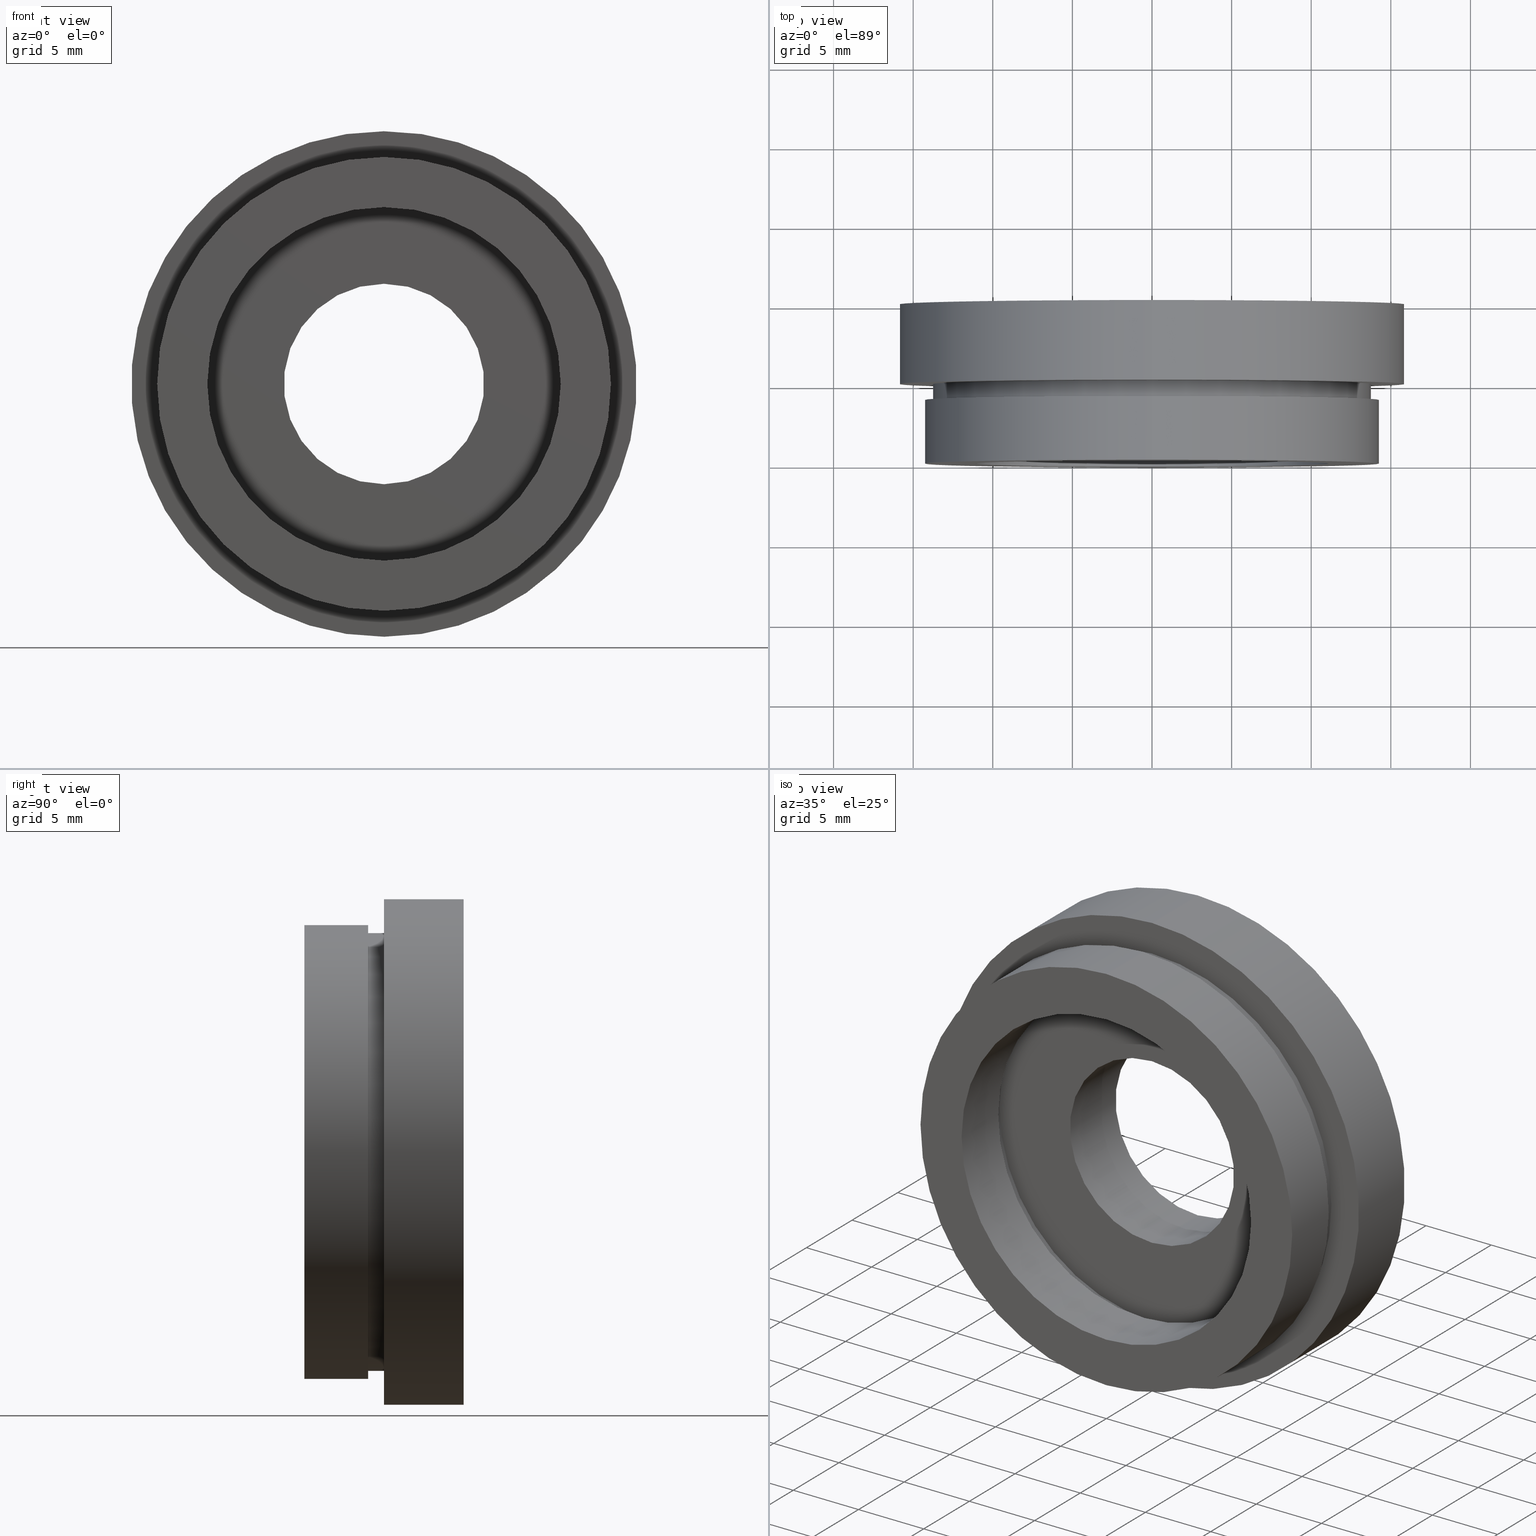
[diagram: canonical four-view strip — front | top / right | iso, engineering-drawing reading convention]
A machine part, canonical four-view strip (front | top / right | iso — engineering-drawing reading convention). The complete STEP part file that produces these views, byte-faithful:
ISO-10303-21;
HEADER;
FILE_DESCRIPTION (( 'STEP AP214' ),
    '1' );
FILE_NAME ('504134.STEP',
    '2019-10-11T01:10:08',
    ( 'user' ),
    ( '΢���й�' ),
    'SwSTEP 2.0',
    'SolidWorks 2016',
    '' );
FILE_SCHEMA (( 'AUTOMOTIVE_DESIGN' ));
ENDSEC;

DATA;
#1 = AXIS2_PLACEMENT_3D ( 'NONE', #564, #272, #518 ) ;
#2 = DIRECTION ( 'NONE',  ( -0.0000000000000000000, 1.000000000000000000, -0.0000000000000000000 ) ) ;
#3 = CIRCLE ( 'NONE', #111, 11.70000000000000100 ) ;
#4 = FILL_AREA_STYLE_COLOUR ( '', #593 ) ;
#5 = DIRECTION ( 'NONE',  ( -0.0000000000000000000, 1.000000000000000000, -0.0000000000000000000 ) ) ;
#6 = EDGE_CURVE ( 'NONE', #178, #57, #485, .T. ) ;
#7 = DIRECTION ( 'NONE',  ( -0.0000000000000000000, 1.000000000000000000, -0.0000000000000000000 ) ) ;
#8 = DIRECTION ( 'NONE',  ( -0.0000000000000000000, 1.000000000000000000, -0.0000000000000000000 ) ) ;
#9 = EDGE_CURVE ( 'NONE', #259, #183, #117, .T. ) ;
#10 = CARTESIAN_POINT ( 'NONE',  ( 0.0000000000000000000, 5.000000000000000900, 13.75000000000000000 ) ) ;
#11 = ORIENTED_EDGE ( 'NONE', *, *, #438, .T. ) ;
#12 = DIRECTION ( 'NONE',  ( -0.0000000000000000000, 1.000000000000000000, -0.0000000000000000000 ) ) ;
#13 = LINE ( 'NONE', #217, #509 ) ;
#14 = DIRECTION ( 'NONE',  ( 0.0000000000000000000, 0.0000000000000000000, 1.000000000000000000 ) ) ;
#15 = CARTESIAN_POINT ( 'NONE',  ( 0.0000000000000000000, 13.74468085106383300, 0.0000000000000000000 ) ) ;
#16 = AXIS2_PLACEMENT_3D ( 'NONE', #21, #348, #299 ) ;
#17 = APPLICATION_CONTEXT ( 'automotive_design' ) ;
#18 = DIRECTION ( 'NONE',  ( -0.0000000000000000000, 1.000000000000000000, -0.0000000000000000000 ) ) ;
#19 = VERTEX_POINT ( 'NONE', #339 ) ;
#20 = ORIENTED_EDGE ( 'NONE', *, *, #133, .F. ) ;
#21 = CARTESIAN_POINT ( 'NONE',  ( 0.0000000000000000000, 13.74468085106383300, 0.0000000000000000000 ) ) ;
#22 = SURFACE_STYLE_FILL_AREA ( #291 ) ;
#23 = CARTESIAN_POINT ( 'NONE',  ( 0.0000000000000000000, 0.0000000000000000000, 11.10000000000000100 ) ) ;
#24 = PLANE ( 'NONE',  #408 ) ;
#25 = PRESENTATION_LAYER_ASSIGNMENT (  '', '', ( #613 ) ) ;
#26 = VERTEX_POINT ( 'NONE', #59 ) ;
#27 = VERTEX_POINT ( 'NONE', #10 ) ;
#28 = AXIS2_PLACEMENT_3D ( 'NONE', #30, #558, #411 ) ;
#29 = SURFACE_STYLE_USAGE ( .BOTH. , #355 ) ;
#30 = CARTESIAN_POINT ( 'NONE',  ( 0.0000000000000000000, 13.74468085106383300, 0.0000000000000000000 ) ) ;
#31 = ORIENTED_EDGE ( 'NONE', *, *, #100, .T. ) ;
#32 = EDGE_LOOP ( 'NONE', ( #482, #405, #329, #128 ) ) ;
#33 = CARTESIAN_POINT ( 'NONE',  ( 6.295000000000001700, 10.00000000000000000, 0.0000000000000000000 ) ) ;
#34 = PRESENTATION_LAYER_ASSIGNMENT (  '', '', ( #72 ) ) ;
#35 = DIRECTION ( 'NONE',  ( -0.0000000000000000000, 1.000000000000000000, -0.0000000000000000000 ) ) ;
#36 = ADVANCED_FACE ( 'NONE', ( #365 ), #514, .F. ) ;
#37 = SURFACE_SIDE_STYLE ('',( #277 ) ) ;
#38 = EDGE_CURVE ( 'NONE', #225, #554, #499, .T. ) ;
#39 = DIRECTION ( 'NONE',  ( 0.0000000000000000000, 0.0000000000000000000, 1.000000000000000000 ) ) ;
#40 = UNCERTAINTY_MEASURE_WITH_UNIT (LENGTH_MEASURE( 1.000000000000000100E-005 ), #263, 'distance_accuracy_value', 'NONE');
#41 = ORIENTED_EDGE ( 'NONE', *, *, #168, .T. ) ;
#42 = CARTESIAN_POINT ( 'NONE',  ( 0.0000000000000000000, 5.000000000000000900, 11.70000000000000100 ) ) ;
#43 = FACE_OUTER_BOUND ( 'NONE', #419, .T. ) ;
#44 = EDGE_CURVE ( 'NONE', #279, #412, #99, .T. ) ;
#45 = DIRECTION ( 'NONE',  ( 0.0000000000000000000, 0.0000000000000000000, 1.000000000000000000 ) ) ;
#46 = DIRECTION ( 'NONE',  ( -0.0000000000000000000, 1.000000000000000000, -0.0000000000000000000 ) ) ;
#47 = ORIENTED_EDGE ( 'NONE', *, *, #73, .T. ) ;
#48 = AXIS2_PLACEMENT_3D ( 'NONE', #591, #210, #159 ) ;
#49 = ORIENTED_EDGE ( 'NONE', *, *, #270, .F. ) ;
#50 = CIRCLE ( 'NONE', #548, 13.75000000000000000 ) ;
#51 = DIRECTION ( 'NONE',  ( -0.0000000000000000000, 1.000000000000000000, 0.0000000000000000000 ) ) ;
#52 = DIRECTION ( 'NONE',  ( -0.0000000000000000000, 1.000000000000000000, -0.0000000000000000000 ) ) ;
#53 = DIRECTION ( 'NONE',  ( -0.0000000000000000000, 1.000000000000000000, -0.0000000000000000000 ) ) ;
#54 = EDGE_LOOP ( 'NONE', ( #309, #97, #496, #521 ) ) ;
#55 = MECHANICAL_DESIGN_GEOMETRIC_PRESENTATION_REPRESENTATION (  '', ( #613 ), #89 ) ;
#56 = DIRECTION ( 'NONE',  ( -0.0000000000000000000, 1.000000000000000000, -0.0000000000000000000 ) ) ;
#57 = VERTEX_POINT ( 'NONE', #479 ) ;
#58 = CIRCLE ( 'NONE', #1, 15.87500000000000000 ) ;
#59 = CARTESIAN_POINT ( 'NONE',  ( 1.432836755002403300E-015, 4.000000000000000000, -11.70000000000000100 ) ) ;
#60 = STYLED_ITEM ( 'NONE', ( #487 ), #139 ) ;
#61 = FILL_AREA_STYLE ('',( #580 ) ) ;
#62 = CARTESIAN_POINT ( 'NONE',  ( 0.0000000000000000000, 5.000000000000000900, 0.0000000000000000000 ) ) ;
#63 = EDGE_LOOP ( 'NONE', ( #176, #543 ) ) ;
#64 = DIRECTION ( 'NONE',  ( 0.0000000000000000000, 0.0000000000000000000, 1.000000000000000000 ) ) ;
#65 = EDGE_LOOP ( 'NONE', ( #609, #508 ) ) ;
#66 = CARTESIAN_POINT ( 'NONE',  ( 1.432836755002403300E-015, 5.000000000000000900, -11.70000000000000100 ) ) ;
#67 = VECTOR ( 'NONE', #422, 1000.000000000000000 ) ;
#68 = SURFACE_STYLE_USAGE ( .BOTH. , #346 ) ;
#69 = SURFACE_STYLE_FILL_AREA ( #547 ) ;
#70 = CARTESIAN_POINT ( 'NONE',  ( 1.944126793646423200E-015, 10.00000000000000000, -15.87500000000000000 ) ) ;
#71 =( NAMED_UNIT ( * ) SI_UNIT ( $, .STERADIAN. ) SOLID_ANGLE_UNIT ( ) );
#72 = STYLED_ITEM ( 'NONE', ( #406 ), #415 ) ;
#73 = EDGE_CURVE ( 'NONE', #280, #184, #104, .T. ) ;
#74 = CARTESIAN_POINT ( 'NONE',  ( 7.709151600632590500E-016, 4.999999999999999100, -6.295000000000001700 ) ) ;
#75 = ORIENTED_EDGE ( 'NONE', *, *, #502, .T. ) ;
#76 = FACE_BOUND ( 'NONE', #288, .T. ) ;
#77 = DIRECTION ( 'NONE',  ( -0.0000000000000000000, 1.000000000000000000, -0.0000000000000000000 ) ) ;
#78 = EDGE_CURVE ( 'NONE', #624, #571, #337, .T. ) ;
#79 =( NAMED_UNIT ( * ) SI_UNIT ( $, .STERADIAN. ) SOLID_ANGLE_UNIT ( ) );
#80 = DIRECTION ( 'NONE',  ( -0.0000000000000000000, 1.000000000000000000, -0.0000000000000000000 ) ) ;
#81 = ORIENTED_EDGE ( 'NONE', *, *, #163, .F. ) ;
#82 = VECTOR ( 'NONE', #477, 1000.000000000000000 ) ;
#83 = AXIS2_PLACEMENT_3D ( 'NONE', #494, #156, #445 ) ;
#84 = CYLINDRICAL_SURFACE ( 'NONE', #378, 11.10000000000000100 ) ;
#85 =( NAMED_UNIT ( * ) SI_UNIT ( $, .STERADIAN. ) SOLID_ANGLE_UNIT ( ) );
#86 = ADVANCED_FACE ( 'NONE', ( #353 ), #233, .T. ) ;
#87 = DIRECTION ( 'NONE',  ( 0.0000000000000000000, 0.0000000000000000000, 1.000000000000000000 ) ) ;
#88 = EDGE_LOOP ( 'NONE', ( #441, #556, #194, #541 ) ) ;
#89 =( GEOMETRIC_REPRESENTATION_CONTEXT ( 3 ) GLOBAL_UNCERTAINTY_ASSIGNED_CONTEXT ( ( #103 ) ) GLOBAL_UNIT_ASSIGNED_CONTEXT ( ( #439, #154, #492 ) ) REPRESENTATION_CONTEXT ( 'NONE', 'WORKASPACE' ) );
#90 = DIRECTION ( 'NONE',  ( 0.0000000000000000000, 0.0000000000000000000, 1.000000000000000000 ) ) ;
#91 = DIRECTION ( 'NONE',  ( 0.0000000000000000000, -0.0000000000000000000, -1.000000000000000000 ) ) ;
#92 = PRESENTATION_LAYER_ASSIGNMENT (  '', '', ( #60 ) ) ;
#93 = CIRCLE ( 'NONE', #315, 15.87500000000000000 ) ;
#94 = ORIENTED_EDGE ( 'NONE', *, *, #465, .T. ) ;
#95 = CIRCLE ( 'NONE', #619, 11.10000000000000100 ) ;
#96 = AXIS2_PLACEMENT_3D ( 'NONE', #318, #614, #39 ) ;
#97 = ORIENTED_EDGE ( 'NONE', *, *, #532, .T. ) ;
#98 = DIRECTION ( 'NONE',  ( -0.0000000000000000000, 1.000000000000000000, -0.0000000000000000000 ) ) ;
#99 = CIRCLE ( 'NONE', #287, 11.70000000000000100 ) ;
#100 = EDGE_CURVE ( 'NONE', #571, #183, #469, .T. ) ;
#101 = CARTESIAN_POINT ( 'NONE',  ( 11.70000000000000100, 4.999999999999999100, 0.0000000000000000000 ) ) ;
#102 = FILL_AREA_STYLE_COLOUR ( '', #379 ) ;
#103 = UNCERTAINTY_MEASURE_WITH_UNIT (LENGTH_MEASURE( 1.000000000000000100E-005 ), #439, 'distance_accuracy_value', 'NONE');
#104 = LINE ( 'NONE', #191, #615 ) ;
#105 = EDGE_CURVE ( 'NONE', #146, #165, #358, .T. ) ;
#106 = EDGE_LOOP ( 'NONE', ( #150, #455, #114, #11 ) ) ;
#107 = SURFACE_STYLE_USAGE ( .BOTH. , #391 ) ;
#108 = CIRCLE ( 'NONE', #223, 11.70000000000000100 ) ;
#109 = FILL_AREA_STYLE ('',( #4 ) ) ;
#110 = CARTESIAN_POINT ( 'NONE',  ( 0.0000000000000000000, 0.0000000000000000000, 0.0000000000000000000 ) ) ;
#111 = AXIS2_PLACEMENT_3D ( 'NONE', #62, #343, #14 ) ;
#112 =( NAMED_UNIT ( * ) PLANE_ANGLE_UNIT ( ) SI_UNIT ( $, .RADIAN. ) );
#113 = COLOUR_RGB ( '',1.000000000000000000, 1.000000000000000000, 1.000000000000000000 ) ;
#114 = ORIENTED_EDGE ( 'NONE', *, *, #105, .T. ) ;
#115 =( NAMED_UNIT ( * ) PLANE_ANGLE_UNIT ( ) SI_UNIT ( $, .RADIAN. ) );
#116 = CYLINDRICAL_SURFACE ( 'NONE', #179, 6.295000000000001700 ) ;
#117 = CIRCLE ( 'NONE', #257, 15.87500000000000000 ) ;
#118 = PRESENTATION_STYLE_ASSIGNMENT (( #243 ) ) ;
#119 = DIRECTION ( 'NONE',  ( -0.0000000000000000000, 1.000000000000000000, -0.0000000000000000000 ) ) ;
#120 = DIRECTION ( 'NONE',  ( 0.0000000000000000000, 0.0000000000000000000, 1.000000000000000000 ) ) ;
#121 =( GEOMETRIC_REPRESENTATION_CONTEXT ( 3 ) GLOBAL_UNCERTAINTY_ASSIGNED_CONTEXT ( ( #617 ) ) GLOBAL_UNIT_ASSIGNED_CONTEXT ( ( #493, #204, #542 ) ) REPRESENTATION_CONTEXT ( 'NONE', 'WORKASPACE' ) );
#122 = FILL_AREA_STYLE_COLOUR ( '', #377 ) ;
#123 = MECHANICAL_DESIGN_GEOMETRIC_PRESENTATION_REPRESENTATION (  '', ( #60 ), #153 ) ;
#124 = DIRECTION ( 'NONE',  ( 0.0000000000000000000, 0.0000000000000000000, 1.000000000000000000 ) ) ;
#125 = FACE_OUTER_BOUND ( 'NONE', #511, .T. ) ;
#126 = CARTESIAN_POINT ( 'NONE',  ( 0.0000000000000000000, 0.0000000000000000000, 0.0000000000000000000 ) ) ;
#127 = CARTESIAN_POINT ( 'NONE',  ( 0.0000000000000000000, 4.000000000000000000, 0.0000000000000000000 ) ) ;
#128 = ORIENTED_EDGE ( 'NONE', *, *, #105, .F. ) ;
#129 = ADVANCED_FACE ( 'NONE', ( #125 ), #481, .F. ) ;
#130 = MECHANICAL_DESIGN_GEOMETRIC_PRESENTATION_REPRESENTATION (  '', ( #72 ), #161 ) ;
#131 = COLOUR_RGB ( '',1.000000000000000000, 1.000000000000000000, 1.000000000000000000 ) ;
#132 = CARTESIAN_POINT ( 'NONE',  ( 0.0000000000000000000, 13.74468085106383300, 13.75000000000000000 ) ) ;
#133 = EDGE_CURVE ( 'NONE', #213, #280, #95, .T. ) ;
#134 = CARTESIAN_POINT ( 'NONE',  ( 1.745121688784978200E-015, 13.74468085106383300, -14.25000000000000000 ) ) ;
#135 = ORIENTED_EDGE ( 'NONE', *, *, #468, .F. ) ;
#136 = EDGE_CURVE ( 'NONE', #526, #27, #461, .T. ) ;
#137 = SURFACE_STYLE_FILL_AREA ( #599 ) ;
#138 = CARTESIAN_POINT ( 'NONE',  ( 0.0000000000000000000, 13.74468085106383300, 0.0000000000000000000 ) ) ;
#139 = MANIFOLD_SOLID_BREP ( '��ת1', #472 ) ;
#140 = AXIS2_PLACEMENT_3D ( 'NONE', #248, #539, #202 ) ;
#141 = DIRECTION ( 'NONE',  ( -0.0000000000000000000, 1.000000000000000000, -0.0000000000000000000 ) ) ;
#142 = EDGE_LOOP ( 'NONE', ( #171, #565, #294, #201 ) ) ;
#143 = ORIENTED_EDGE ( 'NONE', *, *, #600, .T. ) ;
#144 = DIRECTION ( 'NONE',  ( 0.0000000000000000000, 0.0000000000000000000, 1.000000000000000000 ) ) ;
#145 = FACE_OUTER_BOUND ( 'NONE', #433, .T. ) ;
#146 = VERTEX_POINT ( 'NONE', #326 ) ;
#147 = DIRECTION ( 'NONE',  ( -0.0000000000000000000, 1.000000000000000000, -0.0000000000000000000 ) ) ;
#148 = UNCERTAINTY_MEASURE_WITH_UNIT (LENGTH_MEASURE( 1.000000000000000100E-005 ), #307, 'distance_accuracy_value', 'NONE');
#149 = CARTESIAN_POINT ( 'NONE',  ( 1.683889348827610700E-015, 4.000000000000000000, -13.75000000000000000 ) ) ;
#150 = ORIENTED_EDGE ( 'NONE', *, *, #6, .F. ) ;
#151 = CYLINDRICAL_SURFACE ( 'NONE', #96, 11.70000000000000100 ) ;
#152 = DIRECTION ( 'NONE',  ( -0.0000000000000000000, 1.000000000000000000, -0.0000000000000000000 ) ) ;
#153 =( GEOMETRIC_REPRESENTATION_CONTEXT ( 3 ) GLOBAL_UNCERTAINTY_ASSIGNED_CONTEXT ( ( #148 ) ) GLOBAL_UNIT_ASSIGNED_CONTEXT ( ( #307, #601, #260 ) ) REPRESENTATION_CONTEXT ( 'NONE', 'WORKASPACE' ) );
#154 =( NAMED_UNIT ( * ) PLANE_ANGLE_UNIT ( ) SI_UNIT ( $, .RADIAN. ) );
#155 = CARTESIAN_POINT ( 'NONE',  ( 0.0000000000000000000, 13.74468085106383300, 11.70000000000000100 ) ) ;
#156 = DIRECTION ( 'NONE',  ( -0.0000000000000000000, 1.000000000000000000, -0.0000000000000000000 ) ) ;
#157 = ORIENTED_EDGE ( 'NONE', *, *, #270, .T. ) ;
#158 = ORIENTED_EDGE ( 'NONE', *, *, #100, .F. ) ;
#159 = DIRECTION ( 'NONE',  ( 0.0000000000000000000, -0.0000000000000000000, -1.000000000000000000 ) ) ;
#160 = SURFACE_STYLE_USAGE ( .BOTH. , #498 ) ;
#161 =( GEOMETRIC_REPRESENTATION_CONTEXT ( 3 ) GLOBAL_UNCERTAINTY_ASSIGNED_CONTEXT ( ( #216 ) ) GLOBAL_UNIT_ASSIGNED_CONTEXT ( ( #611, #316, #85 ) ) REPRESENTATION_CONTEXT ( 'NONE', 'WORKASPACE' ) );
#162 = ORIENTED_EDGE ( 'NONE', *, *, #367, .F. ) ;
#163 = EDGE_CURVE ( 'NONE', #624, #259, #390, .T. ) ;
#164 =( NAMED_UNIT ( * ) SI_UNIT ( $, .STERADIAN. ) SOLID_ANGLE_UNIT ( ) );
#165 = VERTEX_POINT ( 'NONE', #167 ) ;
#166 = FACE_OUTER_BOUND ( 'NONE', #54, .T. ) ;
#167 = CARTESIAN_POINT ( 'NONE',  ( 0.0000000000000000000, 10.00000000000000000, 6.295000000000001700 ) ) ;
#168 = EDGE_CURVE ( 'NONE', #26, #279, #13, .T. ) ;
#169 = DIRECTION ( 'NONE',  ( -0.0000000000000000000, 1.000000000000000000, -0.0000000000000000000 ) ) ;
#170 = ORIENTED_EDGE ( 'NONE', *, *, #44, .T. ) ;
#171 = ORIENTED_EDGE ( 'NONE', *, *, #168, .F. ) ;
#172 = AXIS2_PLACEMENT_3D ( 'NONE', #544, #18, #206 ) ;
#173 = CYLINDRICAL_SURFACE ( 'NONE', #517, 13.75000000000000000 ) ;
#174 = ADVANCED_FACE ( 'NONE', ( #523 ), #84, .F. ) ;
#175 = ADVANCED_FACE ( 'NONE', ( #457, #574 ), #24, .F. ) ;
#176 = ORIENTED_EDGE ( 'NONE', *, *, #438, .F. ) ;
#177 = DIRECTION ( 'NONE',  ( -0.0000000000000000000, 1.000000000000000000, -0.0000000000000000000 ) ) ;
#178 = VERTEX_POINT ( 'NONE', #74 ) ;
#179 = AXIS2_PLACEMENT_3D ( 'NONE', #241, #152, #538 ) ;
#180 = DIRECTION ( 'NONE',  ( -0.0000000000000000000, 1.000000000000000000, -0.0000000000000000000 ) ) ;
#181 = FACE_BOUND ( 'NONE', #63, .T. ) ;
#182 = STYLED_ITEM ( 'NONE', ( #246 ), #174 ) ;
#183 = VERTEX_POINT ( 'NONE', #212 ) ;
#184 = VERTEX_POINT ( 'NONE', #503 ) ;
#185 = CARTESIAN_POINT ( 'NONE',  ( 0.0000000000000000000, 10.00000000000000000, 0.0000000000000000000 ) ) ;
#186 = CYLINDRICAL_SURFACE ( 'NONE', #450, 15.87500000000000000 ) ;
#187 = FACE_OUTER_BOUND ( 'NONE', #577, .T. ) ;
#188 = DIRECTION ( 'NONE',  ( 0.0000000000000000000, -1.000000000000000000, 0.0000000000000000000 ) ) ;
#189 = AXIS2_PLACEMENT_3D ( 'NONE', #185, #46, #478 ) ;
#190 = DIRECTION ( 'NONE',  ( -0.0000000000000000000, 1.000000000000000000, -0.0000000000000000000 ) ) ;
#191 = CARTESIAN_POINT ( 'NONE',  ( 1.359357947053562400E-015, 13.74468085106383300, -11.10000000000000100 ) ) ;
#192 = SHAPE_DEFINITION_REPRESENTATION ( #293, #506 ) ;
#193 = CARTESIAN_POINT ( 'NONE',  ( 0.0000000000000000000, 13.74468085106383300, 6.295000000000001700 ) ) ;
#194 = ORIENTED_EDGE ( 'NONE', *, *, #568, .F. ) ;
#195 = CIRCLE ( 'NONE', #359, 14.25000000000000000 ) ;
#196 = EDGE_CURVE ( 'NONE', #213, #200, #205, .T. ) ;
#197 = CARTESIAN_POINT ( 'NONE',  ( 0.0000000000000000000, 4.000000000000000000, 0.0000000000000000000 ) ) ;
#198 = DIRECTION ( 'NONE',  ( -0.0000000000000000000, 1.000000000000000000, -0.0000000000000000000 ) ) ;
#199 = EDGE_CURVE ( 'NONE', #362, #586, #446, .T. ) ;
#200 = VERTEX_POINT ( 'NONE', #400 ) ;
#201 = ORIENTED_EDGE ( 'NONE', *, *, #300, .T. ) ;
#202 = DIRECTION ( 'NONE',  ( 0.0000000000000000000, 0.0000000000000000000, 1.000000000000000000 ) ) ;
#203 = FACE_OUTER_BOUND ( 'NONE', #410, .T. ) ;
#204 =( NAMED_UNIT ( * ) PLANE_ANGLE_UNIT ( ) SI_UNIT ( $, .RADIAN. ) );
#205 = LINE ( 'NONE', #449, #325 ) ;
#206 = DIRECTION ( 'NONE',  ( 0.0000000000000000000, 0.0000000000000000000, 1.000000000000000000 ) ) ;
#207 = STYLED_ITEM ( 'NONE', ( #118 ), #314 ) ;
#208 = DIRECTION ( 'NONE',  ( 1.000000000000000000, 0.0000000000000000000, 0.0000000000000000000 ) ) ;
#209 = PLANE ( 'NONE',  #48 ) ;
#210 = DIRECTION ( 'NONE',  ( 0.0000000000000000000, -1.000000000000000000, 0.0000000000000000000 ) ) ;
#211 = ORIENTED_EDGE ( 'NONE', *, *, #136, .T. ) ;
#212 = CARTESIAN_POINT ( 'NONE',  ( 0.0000000000000000000, 10.00000000000000000, 15.87500000000000000 ) ) ;
#213 = VERTEX_POINT ( 'NONE', #23 ) ;
#214 =( LENGTH_UNIT ( ) NAMED_UNIT ( * ) SI_UNIT ( .MILLI., .METRE. ) );
#215 = AXIS2_PLACEMENT_3D ( 'NONE', #583, #240, #64 ) ;
#216 = UNCERTAINTY_MEASURE_WITH_UNIT (LENGTH_MEASURE( 1.000000000000000100E-005 ), #611, 'distance_accuracy_value', 'NONE');
#217 = CARTESIAN_POINT ( 'NONE',  ( 1.432836755002403300E-015, 13.74468085106383300, -11.70000000000000100 ) ) ;
#218 = PRESENTATION_LAYER_ASSIGNMENT (  '', '', ( #182 ) ) ;
#219 = LINE ( 'NONE', #424, #491 ) ;
#220 = DIRECTION ( 'NONE',  ( 0.0000000000000000000, 0.0000000000000000000, 1.000000000000000000 ) ) ;
#221 =( NAMED_UNIT ( * ) PLANE_ANGLE_UNIT ( ) SI_UNIT ( $, .RADIAN. ) );
#222 = ADVANCED_FACE ( 'NONE', ( #187 ), #515, .T. ) ;
#223 = AXIS2_PLACEMENT_3D ( 'NONE', #127, #460, #45 ) ;
#224 = ADVANCED_FACE ( 'NONE', ( #313, #381 ), #209, .F. ) ;
#225 = VERTEX_POINT ( 'NONE', #253 ) ;
#226 = EDGE_CURVE ( 'NONE', #184, #200, #268, .T. ) ;
#227 = CARTESIAN_POINT ( 'NONE',  ( 1.745121688784978200E-015, 4.000000000000000000, -14.25000000000000000 ) ) ;
#228 = EDGE_CURVE ( 'NONE', #178, #146, #254, .T. ) ;
#229 = EDGE_LOOP ( 'NONE', ( #582, #211 ) ) ;
#230 = CARTESIAN_POINT ( 'NONE',  ( 0.0000000000000000000, 10.00000000000000000, 0.0000000000000000000 ) ) ;
#231 = CIRCLE ( 'NONE', #189, 6.295000000000001700 ) ;
#232 = DIRECTION ( 'NONE',  ( 0.0000000000000000000, 0.0000000000000000000, 1.000000000000000000 ) ) ;
#233 = CYLINDRICAL_SURFACE ( 'NONE', #488, 13.75000000000000000 ) ;
#234 = PRESENTATION_LAYER_ASSIGNMENT (  '', '', ( #207 ) ) ;
#235 = CARTESIAN_POINT ( 'NONE',  ( 0.0000000000000000000, 13.74468085106383300, 0.0000000000000000000 ) ) ;
#236 = ORIENTED_EDGE ( 'NONE', *, *, #226, .F. ) ;
#237 = PLANE ( 'NONE',  #560 ) ;
#238 = FACE_OUTER_BOUND ( 'NONE', #106, .T. ) ;
#239 = DIRECTION ( 'NONE',  ( 0.0000000000000000000, 0.0000000000000000000, 1.000000000000000000 ) ) ;
#240 = DIRECTION ( 'NONE',  ( -0.0000000000000000000, 1.000000000000000000, 0.0000000000000000000 ) ) ;
#241 = CARTESIAN_POINT ( 'NONE',  ( 0.0000000000000000000, 13.74468085106383300, 0.0000000000000000000 ) ) ;
#242 = EDGE_LOOP ( 'NONE', ( #75, #427 ) ) ;
#243 = SURFACE_STYLE_USAGE ( .BOTH. , #581 ) ;
#244 = DIRECTION ( 'NONE',  ( -0.0000000000000000000, 1.000000000000000000, -0.0000000000000000000 ) ) ;
#245 = MECHANICAL_DESIGN_GEOMETRIC_PRESENTATION_REPRESENTATION (  '', ( #182 ), #278 ) ;
#246 = PRESENTATION_STYLE_ASSIGNMENT (( #550 ) ) ;
#247 = FILL_AREA_STYLE ('',( #393 ) ) ;
#248 = CARTESIAN_POINT ( 'NONE',  ( 0.0000000000000000000, 4.000000000000000000, 0.0000000000000000000 ) ) ;
#249 = VECTOR ( 'NONE', #56, 1000.000000000000000 ) ;
#250 = DIRECTION ( 'NONE',  ( 0.0000000000000000000, 0.0000000000000000000, 1.000000000000000000 ) ) ;
#251 = APPLICATION_CONTEXT ( 'automotive_design' ) ;
#252 = ORIENTED_EDGE ( 'NONE', *, *, #9, .F. ) ;
#253 = CARTESIAN_POINT ( 'NONE',  ( 0.0000000000000000000, 0.0000000000000000000, 14.25000000000000000 ) ) ;
#254 = CIRCLE ( 'NONE', #83, 6.295000000000001700 ) ;
#255 = DIRECTION ( 'NONE',  ( 0.0000000000000000000, 0.0000000000000000000, 1.000000000000000000 ) ) ;
#256 = AXIS2_PLACEMENT_3D ( 'NONE', #467, #417, #363 ) ;
#257 = AXIS2_PLACEMENT_3D ( 'NONE', #423, #177, #425 ) ;
#258 = SURFACE_SIDE_STYLE ('',( #137 ) ) ;
#259 = VERTEX_POINT ( 'NONE', #70 ) ;
#260 =( NAMED_UNIT ( * ) SI_UNIT ( $, .STERADIAN. ) SOLID_ANGLE_UNIT ( ) );
#261 = ORIENTED_EDGE ( 'NONE', *, *, #432, .F. ) ;
#262 = VECTOR ( 'NONE', #147, 1000.000000000000000 ) ;
#263 =( LENGTH_UNIT ( ) NAMED_UNIT ( * ) SI_UNIT ( .MILLI., .METRE. ) );
#264 = ORIENTED_EDGE ( 'NONE', *, *, #502, .F. ) ;
#265 = MECHANICAL_DESIGN_GEOMETRIC_PRESENTATION_REPRESENTATION (  '', ( #207 ), #298 ) ;
#266 = DIRECTION ( 'NONE',  ( -0.0000000000000000000, 1.000000000000000000, -0.0000000000000000000 ) ) ;
#267 = ORIENTED_EDGE ( 'NONE', *, *, #505, .T. ) ;
#268 = CIRCLE ( 'NONE', #572, 11.10000000000000100 ) ;
#269 = ADVANCED_FACE ( 'NONE', ( #145 ), #366, .T. ) ;
#270 = EDGE_CURVE ( 'NONE', #396, #19, #501, .T. ) ;
#271 = FILL_AREA_STYLE ('',( #275 ) ) ;
#272 = DIRECTION ( 'NONE',  ( -0.0000000000000000000, 1.000000000000000000, -0.0000000000000000000 ) ) ;
#273 = ORIENTED_EDGE ( 'NONE', *, *, #403, .F. ) ;
#274 = STYLED_ITEM ( 'NONE', ( #480 ), #506 ) ;
#275 = FILL_AREA_STYLE_COLOUR ( '', #536 ) ;
#276 = ORIENTED_EDGE ( 'NONE', *, *, #78, .F. ) ;
#277 = SURFACE_STYLE_FILL_AREA ( #271 ) ;
#278 =( GEOMETRIC_REPRESENTATION_CONTEXT ( 3 ) GLOBAL_UNCERTAINTY_ASSIGNED_CONTEXT ( ( #549 ) ) GLOBAL_UNIT_ASSIGNED_CONTEXT ( ( #214, #504, #164 ) ) REPRESENTATION_CONTEXT ( 'NONE', 'WORKASPACE' ) );
#279 = VERTEX_POINT ( 'NONE', #66 ) ;
#280 = VERTEX_POINT ( 'NONE', #585 ) ;
#281 = PRESENTATION_STYLE_ASSIGNMENT (( #107 ) ) ;
#282 = DIRECTION ( 'NONE',  ( -0.0000000000000000000, 1.000000000000000000, -0.0000000000000000000 ) ) ;
#283 = CARTESIAN_POINT ( 'NONE',  ( 0.0000000000000000000, 0.0000000000000000000, 0.0000000000000000000 ) ) ;
#284 = CARTESIAN_POINT ( 'NONE',  ( 0.0000000000000000000, 13.74468085106383300, 15.87500000000000000 ) ) ;
#285 = DIRECTION ( 'NONE',  ( 0.0000000000000000000, 0.0000000000000000000, 1.000000000000000000 ) ) ;
#286 = CARTESIAN_POINT ( 'NONE',  ( 0.0000000000000000000, 5.000000000000000900, 0.0000000000000000000 ) ) ;
#287 = AXIS2_PLACEMENT_3D ( 'NONE', #286, #5, #327 ) ;
#288 = EDGE_LOOP ( 'NONE', ( #342, #347 ) ) ;
#289 = CIRCLE ( 'NONE', #527, 6.295000000000001700 ) ;
#290 = CARTESIAN_POINT ( 'NONE',  ( 0.0000000000000000000, 0.0000000000000000000, 0.0000000000000000000 ) ) ;
#291 = FILL_AREA_STYLE ('',( #440 ) ) ;
#292 = CARTESIAN_POINT ( 'NONE',  ( 1.944126793646423200E-015, 5.000000000000000900, -15.87500000000000000 ) ) ;
#293 = PRODUCT_DEFINITION_SHAPE ( 'NONE', 'NONE',  #462 ) ;
#294 = ORIENTED_EDGE ( 'NONE', *, *, #335, .T. ) ;
#295 = ORIENTED_EDGE ( 'NONE', *, *, #335, .F. ) ;
#296 = CIRCLE ( 'NONE', #486, 6.295000000000001700 ) ;
#297 = CARTESIAN_POINT ( 'NONE',  ( 0.0000000000000000000, 4.000000000000000000, 0.0000000000000000000 ) ) ;
#298 =( GEOMETRIC_REPRESENTATION_CONTEXT ( 3 ) GLOBAL_UNCERTAINTY_ASSIGNED_CONTEXT ( ( #320 ) ) GLOBAL_UNIT_ASSIGNED_CONTEXT ( ( #454, #605, #79 ) ) REPRESENTATION_CONTEXT ( 'NONE', 'WORKASPACE' ) );
#299 = DIRECTION ( 'NONE',  ( 0.0000000000000000000, 0.0000000000000000000, 1.000000000000000000 ) ) ;
#300 = EDGE_CURVE ( 'NONE', #412, #279, #3, .T. ) ;
#301 = CARTESIAN_POINT ( 'NONE',  ( 0.0000000000000000000, 4.000000000000000000, 0.0000000000000000000 ) ) ;
#302 = FILL_AREA_STYLE_COLOUR ( '', #587 ) ;
#303 = ORIENTED_EDGE ( 'NONE', *, *, #136, .F. ) ;
#304 = FACE_OUTER_BOUND ( 'NONE', #451, .T. ) ;
#305 = DIRECTION ( 'NONE',  ( -0.0000000000000000000, 1.000000000000000000, -0.0000000000000000000 ) ) ;
#306 = PRESENTATION_LAYER_ASSIGNMENT (  '', '', ( #274 ) ) ;
#307 =( LENGTH_UNIT ( ) NAMED_UNIT ( * ) SI_UNIT ( .MILLI., .METRE. ) );
#308 = AXIS2_PLACEMENT_3D ( 'NONE', #301, #595, #255 ) ;
#309 = ORIENTED_EDGE ( 'NONE', *, *, #38, .T. ) ;
#310 = EDGE_LOOP ( 'NONE', ( #317, #47, #323, #596 ) ) ;
#311 = DIRECTION ( 'NONE',  ( 0.0000000000000000000, 0.0000000000000000000, 1.000000000000000000 ) ) ;
#312 = FACE_OUTER_BOUND ( 'NONE', #32, .T. ) ;
#313 = FACE_BOUND ( 'NONE', #375, .T. ) ;
#314 = ADVANCED_FACE ( 'NONE', ( #238 ), #566, .F. ) ;
#315 = AXIS2_PLACEMENT_3D ( 'NONE', #376, #524, #570 ) ;
#316 =( NAMED_UNIT ( * ) PLANE_ANGLE_UNIT ( ) SI_UNIT ( $, .RADIAN. ) );
#317 = ORIENTED_EDGE ( 'NONE', *, *, #600, .F. ) ;
#318 = CARTESIAN_POINT ( 'NONE',  ( 0.0000000000000000000, 13.74468085106383300, 0.0000000000000000000 ) ) ;
#319 = CIRCLE ( 'NONE', #430, 11.10000000000000100 ) ;
#320 = UNCERTAINTY_MEASURE_WITH_UNIT (LENGTH_MEASURE( 1.000000000000000100E-005 ), #454, 'distance_accuracy_value', 'NONE');
#321 = AXIS2_PLACEMENT_3D ( 'NONE', #529, #52, #575 ) ;
#322 = DIRECTION ( 'NONE',  ( 0.0000000000000000000, 0.0000000000000000000, 1.000000000000000000 ) ) ;
#323 = ORIENTED_EDGE ( 'NONE', *, *, #226, .T. ) ;
#324 = LINE ( 'NONE', #134, #67 ) ;
#325 = VECTOR ( 'NONE', #119, 1000.000000000000000 ) ;
#326 = CARTESIAN_POINT ( 'NONE',  ( 0.0000000000000000000, 4.999999999999999100, 6.295000000000001700 ) ) ;
#327 = DIRECTION ( 'NONE',  ( 0.0000000000000000000, 0.0000000000000000000, 1.000000000000000000 ) ) ;
#328 = SURFACE_STYLE_FILL_AREA ( #109 ) ;
#329 = ORIENTED_EDGE ( 'NONE', *, *, #563, .T. ) ;
#330 = EDGE_CURVE ( 'NONE', #554, #225, #195, .T. ) ;
#331 = CARTESIAN_POINT ( 'NONE',  ( 0.0000000000000000000, 13.74468085106383300, 0.0000000000000000000 ) ) ;
#332 = ORIENTED_EDGE ( 'NONE', *, *, #78, .T. ) ;
#333 = CARTESIAN_POINT ( 'NONE',  ( 0.0000000000000000000, 5.000000000000000900, 0.0000000000000000000 ) ) ;
#334 = DIRECTION ( 'NONE',  ( 0.0000000000000000000, 0.0000000000000000000, 1.000000000000000000 ) ) ;
#335 = EDGE_CURVE ( 'NONE', #512, #412, #452, .T. ) ;
#336 = MECHANICAL_DESIGN_GEOMETRIC_PRESENTATION_REPRESENTATION (  '', ( #274 ), #372 ) ;
#337 = CIRCLE ( 'NONE', #386, 15.87500000000000000 ) ;
#338 = PRESENTATION_STYLE_ASSIGNMENT (( #458 ) ) ;
#339 = CARTESIAN_POINT ( 'NONE',  ( 0.0000000000000000000, 4.000000000000000000, 14.25000000000000000 ) ) ;
#340 = ORIENTED_EDGE ( 'NONE', *, *, #330, .T. ) ;
#341 = DIRECTION ( 'NONE',  ( 0.0000000000000000000, 0.0000000000000000000, 1.000000000000000000 ) ) ;
#342 = ORIENTED_EDGE ( 'NONE', *, *, #371, .T. ) ;
#343 = DIRECTION ( 'NONE',  ( -0.0000000000000000000, 1.000000000000000000, -0.0000000000000000000 ) ) ;
#344 = LINE ( 'NONE', #474, #456 ) ;
#345 = PLANE ( 'NONE',  #215 ) ;
#346 = SURFACE_SIDE_STYLE ('',( #607 ) ) ;
#347 = ORIENTED_EDGE ( 'NONE', *, *, #228, .T. ) ;
#348 = DIRECTION ( 'NONE',  ( -0.0000000000000000000, 1.000000000000000000, -0.0000000000000000000 ) ) ;
#349 = ORIENTED_EDGE ( 'NONE', *, *, #399, .T. ) ;
#350 = AXIS2_PLACEMENT_3D ( 'NONE', #608, #188, #528 ) ;
#351 = AXIS2_PLACEMENT_3D ( 'NONE', #331, #8, #384 ) ;
#352 = DIRECTION ( 'NONE',  ( -0.0000000000000000000, 1.000000000000000000, 0.0000000000000000000 ) ) ;
#353 = FACE_OUTER_BOUND ( 'NONE', #88, .T. ) ;
#354 = ORIENTED_EDGE ( 'NONE', *, *, #597, .F. ) ;
#355 = SURFACE_SIDE_STYLE ('',( #328 ) ) ;
#356 = FACE_OUTER_BOUND ( 'NONE', #435, .T. ) ;
#357 =( NAMED_UNIT ( * ) SI_UNIT ( $, .STERADIAN. ) SOLID_ANGLE_UNIT ( ) );
#358 = LINE ( 'NONE', #193, #622 ) ;
#359 = AXIS2_PLACEMENT_3D ( 'NONE', #126, #190, #483 ) ;
#360 = CARTESIAN_POINT ( 'NONE',  ( 0.0000000000000000000, 4.000000000000000000, 13.75000000000000000 ) ) ;
#361 = ADVANCED_FACE ( 'NONE', ( #304, #76 ), #623, .F. ) ;
#362 = VERTEX_POINT ( 'NONE', #149 ) ;
#363 = DIRECTION ( 'NONE',  ( 0.0000000000000000000, 0.0000000000000000000, 1.000000000000000000 ) ) ;
#364 = FACE_BOUND ( 'NONE', #229, .T. ) ;
#365 = FACE_OUTER_BOUND ( 'NONE', #142, .T. ) ;
#366 = CYLINDRICAL_SURFACE ( 'NONE', #172, 15.87500000000000000 ) ;
#367 = EDGE_CURVE ( 'NONE', #200, #184, #319, .T. ) ;
#368 = SURFACE_STYLE_USAGE ( .BOTH. , #37 ) ;
#369 = ADVANCED_FACE ( 'NONE', ( #181, #420 ), #237, .F. ) ;
#370 = DIRECTION ( 'NONE',  ( -0.0000000000000000000, 1.000000000000000000, -0.0000000000000000000 ) ) ;
#371 = EDGE_CURVE ( 'NONE', #146, #178, #289, .T. ) ;
#372 =( GEOMETRIC_REPRESENTATION_CONTEXT ( 3 ) GLOBAL_UNCERTAINTY_ASSIGNED_CONTEXT ( ( #387 ) ) GLOBAL_UNIT_ASSIGNED_CONTEXT ( ( #395, #112, #447 ) ) REPRESENTATION_CONTEXT ( 'NONE', 'WORKASPACE' ) );
#373 = DIRECTION ( 'NONE',  ( 0.0000000000000000000, -1.000000000000000000, 0.0000000000000000000 ) ) ;
#374 = ORIENTED_EDGE ( 'NONE', *, *, #133, .T. ) ;
#375 = EDGE_LOOP ( 'NONE', ( #162, #236 ) ) ;
#376 = CARTESIAN_POINT ( 'NONE',  ( 0.0000000000000000000, 10.00000000000000000, 0.0000000000000000000 ) ) ;
#377 = COLOUR_RGB ( '',1.000000000000000000, 1.000000000000000000, 1.000000000000000000 ) ;
#378 = AXIS2_PLACEMENT_3D ( 'NONE', #404, #53, #120 ) ;
#379 = COLOUR_RGB ( '',1.000000000000000000, 1.000000000000000000, 1.000000000000000000 ) ;
#380 = EDGE_LOOP ( 'NONE', ( #388, #618 ) ) ;
#381 = FACE_OUTER_BOUND ( 'NONE', #380, .T. ) ;
#382 = AXIS2_PLACEMENT_3D ( 'NONE', #333, #7, #285 ) ;
#383 = DIRECTION ( 'NONE',  ( 0.0000000000000000000, 0.0000000000000000000, 1.000000000000000000 ) ) ;
#384 = DIRECTION ( 'NONE',  ( 0.0000000000000000000, 0.0000000000000000000, 1.000000000000000000 ) ) ;
#385 = ORIENTED_EDGE ( 'NONE', *, *, #199, .T. ) ;
#386 = AXIS2_PLACEMENT_3D ( 'NONE', #484, #98, #334 ) ;
#387 = UNCERTAINTY_MEASURE_WITH_UNIT (LENGTH_MEASURE( 1.000000000000000100E-005 ), #395, 'distance_accuracy_value', 'NONE');
#388 = ORIENTED_EDGE ( 'NONE', *, *, #535, .T. ) ;
#389 = CARTESIAN_POINT ( 'NONE',  ( 7.709151600632590500E-016, 13.74468085106383300, -6.295000000000001700 ) ) ;
#390 = LINE ( 'NONE', #507, #262 ) ;
#391 = SURFACE_SIDE_STYLE ('',( #545 ) ) ;
#392 = DIRECTION ( 'NONE',  ( -0.0000000000000000000, 1.000000000000000000, -0.0000000000000000000 ) ) ;
#393 = FILL_AREA_STYLE_COLOUR ( '', #113 ) ;
#394 = ORIENTED_EDGE ( 'NONE', *, *, #73, .F. ) ;
#395 =( LENGTH_UNIT ( ) NAMED_UNIT ( * ) SI_UNIT ( .MILLI., .METRE. ) );
#396 = VERTEX_POINT ( 'NONE', #227 ) ;
#397 = AXIS2_PLACEMENT_3D ( 'NONE', #15, #392, #124 ) ;
#398 = DIRECTION ( 'NONE',  ( 0.0000000000000000000, 0.0000000000000000000, 1.000000000000000000 ) ) ;
#399 = EDGE_CURVE ( 'NONE', #19, #396, #552, .T. ) ;
#400 = CARTESIAN_POINT ( 'NONE',  ( 0.0000000000000000000, 4.000000000000000000, 11.10000000000000100 ) ) ;
#401 = CARTESIAN_POINT ( 'NONE',  ( 14.25000000000000000, -3.918869757271531000E-016, 0.0000000000000000000 ) ) ;
#402 = EDGE_LOOP ( 'NONE', ( #273, #276 ) ) ;
#403 = EDGE_CURVE ( 'NONE', #571, #624, #58, .T. ) ;
#404 = CARTESIAN_POINT ( 'NONE',  ( 0.0000000000000000000, 13.74468085106383300, 0.0000000000000000000 ) ) ;
#405 = ORIENTED_EDGE ( 'NONE', *, *, #6, .T. ) ;
#406 = PRESENTATION_STYLE_ASSIGNMENT (( #368 ) ) ;
#407 = PRODUCT_DEFINITION_CONTEXT ( 'detailed design', #251, 'design' ) ;
#408 = AXIS2_PLACEMENT_3D ( 'NONE', #401, #352, #598 ) ;
#409 = DIRECTION ( 'NONE',  ( 0.0000000000000000000, 0.0000000000000000000, 1.000000000000000000 ) ) ;
#410 = EDGE_LOOP ( 'NONE', ( #135, #385, #267, #303 ) ) ;
#411 = DIRECTION ( 'NONE',  ( 0.0000000000000000000, 0.0000000000000000000, 1.000000000000000000 ) ) ;
#412 = VERTEX_POINT ( 'NONE', #42 ) ;
#413 = COLOUR_RGB ( '',1.000000000000000000, 1.000000000000000000, 1.000000000000000000 ) ;
#414 = ADVANCED_FACE ( 'NONE', ( #43 ), #151, .F. ) ;
#415 = ADVANCED_FACE ( 'NONE', ( #166 ), #603, .T. ) ;
#416 = AXIS2_PLACEMENT_3D ( 'NONE', #197, #169, #322 ) ;
#417 = DIRECTION ( 'NONE',  ( -0.0000000000000000000, 1.000000000000000000, -0.0000000000000000000 ) ) ;
#418 = CARTESIAN_POINT ( 'NONE',  ( 0.0000000000000000000, 4.000000000000000000, 0.0000000000000000000 ) ) ;
#419 = EDGE_LOOP ( 'NONE', ( #261, #41, #170, #295 ) ) ;
#420 = FACE_OUTER_BOUND ( 'NONE', #242, .T. ) ;
#421 = PRESENTATION_LAYER_ASSIGNMENT (  '', '', ( #453 ) ) ;
#422 = DIRECTION ( 'NONE',  ( -0.0000000000000000000, 1.000000000000000000, -0.0000000000000000000 ) ) ;
#423 = CARTESIAN_POINT ( 'NONE',  ( 0.0000000000000000000, 10.00000000000000000, 0.0000000000000000000 ) ) ;
#424 = CARTESIAN_POINT ( 'NONE',  ( 0.0000000000000000000, 13.74468085106383300, 14.25000000000000000 ) ) ;
#425 = DIRECTION ( 'NONE',  ( 0.0000000000000000000, 0.0000000000000000000, 1.000000000000000000 ) ) ;
#426 = FILL_AREA_STYLE ('',( #102 ) ) ;
#427 = ORIENTED_EDGE ( 'NONE', *, *, #9, .T. ) ;
#428 = EDGE_LOOP ( 'NONE', ( #81, #332, #31, #252 ) ) ;
#429 = CIRCLE ( 'NONE', #578, 11.10000000000000100 ) ;
#430 = AXIS2_PLACEMENT_3D ( 'NONE', #495, #531, #239 ) ;
#431 = DIRECTION ( 'NONE',  ( -0.0000000000000000000, 1.000000000000000000, -0.0000000000000000000 ) ) ;
#432 = EDGE_CURVE ( 'NONE', #26, #512, #108, .T. ) ;
#433 = EDGE_LOOP ( 'NONE', ( #473, #594, #264, #158 ) ) ;
#434 = CARTESIAN_POINT ( 'NONE',  ( 0.0000000000000000000, 13.74468085106383300, 0.0000000000000000000 ) ) ;
#435 = EDGE_LOOP ( 'NONE', ( #349, #157 ) ) ;
#436 = VECTOR ( 'NONE', #266, 1000.000000000000000 ) ;
#437 = UNCERTAINTY_MEASURE_WITH_UNIT (LENGTH_MEASURE( 1.000000000000000100E-005 ), #448, 'distance_accuracy_value', 'NONE');
#438 = EDGE_CURVE ( 'NONE', #165, #57, #231, .T. ) ;
#439 =( LENGTH_UNIT ( ) NAMED_UNIT ( * ) SI_UNIT ( .MILLI., .METRE. ) );
#440 = FILL_AREA_STYLE_COLOUR ( '', #131 ) ;
#441 = ORIENTED_EDGE ( 'NONE', *, *, #597, .T. ) ;
#442 = STYLED_ITEM ( 'NONE', ( #559 ), #222 ) ;
#443 = ORIENTED_EDGE ( 'NONE', *, *, #199, .F. ) ;
#444 = FACE_OUTER_BOUND ( 'NONE', #428, .T. ) ;
#445 = DIRECTION ( 'NONE',  ( 0.0000000000000000000, 0.0000000000000000000, 1.000000000000000000 ) ) ;
#446 = CIRCLE ( 'NONE', #308, 13.75000000000000000 ) ;
#447 =( NAMED_UNIT ( * ) SI_UNIT ( $, .STERADIAN. ) SOLID_ANGLE_UNIT ( ) );
#448 =( LENGTH_UNIT ( ) NAMED_UNIT ( * ) SI_UNIT ( .MILLI., .METRE. ) );
#449 = CARTESIAN_POINT ( 'NONE',  ( 0.0000000000000000000, 13.74468085106383300, 11.10000000000000100 ) ) ;
#450 = AXIS2_PLACEMENT_3D ( 'NONE', #235, #513, #311 ) ;
#451 = EDGE_LOOP ( 'NONE', ( #466, #525 ) ) ;
#452 = LINE ( 'NONE', #155, #436 ) ;
#453 = STYLED_ITEM ( 'NONE', ( #338 ), #129 ) ;
#454 =( LENGTH_UNIT ( ) NAMED_UNIT ( * ) SI_UNIT ( .MILLI., .METRE. ) );
#455 = ORIENTED_EDGE ( 'NONE', *, *, #371, .F. ) ;
#456 = VECTOR ( 'NONE', #141, 1000.000000000000000 ) ;
#457 = FACE_OUTER_BOUND ( 'NONE', #65, .T. ) ;
#458 = SURFACE_STYLE_USAGE ( .BOTH. , #562 ) ;
#459 = AXIS2_PLACEMENT_3D ( 'NONE', #101, #51, #232 ) ;
#460 = DIRECTION ( 'NONE',  ( -0.0000000000000000000, 1.000000000000000000, -0.0000000000000000000 ) ) ;
#461 = CIRCLE ( 'NONE', #579, 13.75000000000000000 ) ;
#462 = PRODUCT_DEFINITION ( 'δ֪', '', #500, #407 ) ;
#463 = ADVANCED_FACE ( 'NONE', ( #475, #356 ), #621, .F. ) ;
#464 = ORIENTED_EDGE ( 'NONE', *, *, #196, .T. ) ;
#465 = EDGE_CURVE ( 'NONE', #225, #19, #219, .T. ) ;
#466 = ORIENTED_EDGE ( 'NONE', *, *, #300, .F. ) ;
#467 = CARTESIAN_POINT ( 'NONE',  ( 0.0000000000000000000, 13.74468085106383300, 0.0000000000000000000 ) ) ;
#468 = EDGE_CURVE ( 'NONE', #362, #526, #344, .T. ) ;
#469 = LINE ( 'NONE', #284, #249 ) ;
#470 = AXIS2_PLACEMENT_3D ( 'NONE', #110, #409, #208 ) ;
#471 = CARTESIAN_POINT ( 'NONE',  ( 1.683889348827610700E-015, 5.000000000000000900, -13.75000000000000000 ) ) ;
#472 = CLOSED_SHELL ( 'NONE', ( #415, #86, #269, #606, #414, #174, #129, #224, #36, #361, #314, #369, #516, #612, #561, #463, #222, #175 ) ) ;
#473 = ORIENTED_EDGE ( 'NONE', *, *, #403, .T. ) ;
#474 = CARTESIAN_POINT ( 'NONE',  ( 1.683889348827610700E-015, 13.74468085106383300, -13.75000000000000000 ) ) ;
#475 = FACE_BOUND ( 'NONE', #551, .T. ) ;
#476 = PRESENTATION_LAYER_ASSIGNMENT (  '', '', ( #442 ) ) ;
#477 = DIRECTION ( 'NONE',  ( -0.0000000000000000000, 1.000000000000000000, -0.0000000000000000000 ) ) ;
#478 = DIRECTION ( 'NONE',  ( 0.0000000000000000000, 0.0000000000000000000, 1.000000000000000000 ) ) ;
#479 = CARTESIAN_POINT ( 'NONE',  ( 7.709151600632590500E-016, 10.00000000000000000, -6.295000000000001700 ) ) ;
#480 = PRESENTATION_STYLE_ASSIGNMENT (( #68 ) ) ;
#481 = CYLINDRICAL_SURFACE ( 'NONE', #28, 11.10000000000000100 ) ;
#482 = ORIENTED_EDGE ( 'NONE', *, *, #228, .F. ) ;
#483 = DIRECTION ( 'NONE',  ( 0.0000000000000000000, 0.0000000000000000000, 1.000000000000000000 ) ) ;
#484 = CARTESIAN_POINT ( 'NONE',  ( 0.0000000000000000000, 5.000000000000000900, 0.0000000000000000000 ) ) ;
#485 = LINE ( 'NONE', #389, #610 ) ;
#486 = AXIS2_PLACEMENT_3D ( 'NONE', #230, #533, #220 ) ;
#487 = PRESENTATION_STYLE_ASSIGNMENT (( #29 ) ) ;
#488 = AXIS2_PLACEMENT_3D ( 'NONE', #434, #282, #383 ) ;
#489 = CARTESIAN_POINT ( 'NONE',  ( 0.0000000000000000000, 4.000000000000000000, 0.0000000000000000000 ) ) ;
#490 = EDGE_LOOP ( 'NONE', ( #374, #143 ) ) ;
#491 = VECTOR ( 'NONE', #35, 1000.000000000000000 ) ;
#492 =( NAMED_UNIT ( * ) SI_UNIT ( $, .STERADIAN. ) SOLID_ANGLE_UNIT ( ) );
#493 =( LENGTH_UNIT ( ) NAMED_UNIT ( * ) SI_UNIT ( .MILLI., .METRE. ) );
#494 = CARTESIAN_POINT ( 'NONE',  ( 0.0000000000000000000, 4.999999999999999100, 0.0000000000000000000 ) ) ;
#495 = CARTESIAN_POINT ( 'NONE',  ( 0.0000000000000000000, 4.000000000000000000, 0.0000000000000000000 ) ) ;
#496 = ORIENTED_EDGE ( 'NONE', *, *, #399, .F. ) ;
#497 = FACE_OUTER_BOUND ( 'NONE', #402, .T. ) ;
#498 = SURFACE_SIDE_STYLE ('',( #69 ) ) ;
#499 = CIRCLE ( 'NONE', #321, 14.25000000000000000 ) ;
#500 = PRODUCT_DEFINITION_FORMATION_WITH_SPECIFIED_SOURCE ( '�κ�', '', #604, .NOT_KNOWN. ) ;
#501 = CIRCLE ( 'NONE', #140, 14.25000000000000000 ) ;
#502 = EDGE_CURVE ( 'NONE', #183, #259, #93, .T. ) ;
#503 = CARTESIAN_POINT ( 'NONE',  ( 1.359357947053562400E-015, 4.000000000000000000, -11.10000000000000100 ) ) ;
#504 =( NAMED_UNIT ( * ) PLANE_ANGLE_UNIT ( ) SI_UNIT ( $, .RADIAN. ) );
#505 = EDGE_CURVE ( 'NONE', #586, #27, #584, .T. ) ;
#506 = ADVANCED_BREP_SHAPE_REPRESENTATION ( '504134', ( #139, #470 ), #121 ) ;
#507 = CARTESIAN_POINT ( 'NONE',  ( 1.944126793646423200E-015, 13.74468085106383300, -15.87500000000000000 ) ) ;
#508 = ORIENTED_EDGE ( 'NONE', *, *, #330, .F. ) ;
#509 = VECTOR ( 'NONE', #77, 1000.000000000000000 ) ;
#510 = MECHANICAL_DESIGN_GEOMETRIC_PRESENTATION_REPRESENTATION (  '', ( #442 ), #540 ) ;
#511 = EDGE_LOOP ( 'NONE', ( #394, #20, #464, #534 ) ) ;
#512 = VERTEX_POINT ( 'NONE', #620 ) ;
#513 = DIRECTION ( 'NONE',  ( -0.0000000000000000000, 1.000000000000000000, -0.0000000000000000000 ) ) ;
#514 = CYLINDRICAL_SURFACE ( 'NONE', #351, 11.70000000000000100 ) ;
#515 = CYLINDRICAL_SURFACE ( 'NONE', #16, 14.25000000000000000 ) ;
#516 = ADVANCED_FACE ( 'NONE', ( #444 ), #186, .T. ) ;
#517 = AXIS2_PLACEMENT_3D ( 'NONE', #138, #80, #87 ) ;
#518 = DIRECTION ( 'NONE',  ( 0.0000000000000000000, 0.0000000000000000000, 1.000000000000000000 ) ) ;
#519 = DIRECTION ( 'NONE',  ( 0.0000000000000000000, 0.0000000000000000000, 1.000000000000000000 ) ) ;
#520 = MECHANICAL_DESIGN_GEOMETRIC_PRESENTATION_REPRESENTATION (  '', ( #453 ), #553 ) ;
#521 = ORIENTED_EDGE ( 'NONE', *, *, #465, .F. ) ;
#522 = CARTESIAN_POINT ( 'NONE',  ( 1.745121688784978200E-015, 0.0000000000000000000, -14.25000000000000000 ) ) ;
#523 = FACE_OUTER_BOUND ( 'NONE', #310, .T. ) ;
#524 = DIRECTION ( 'NONE',  ( -0.0000000000000000000, 1.000000000000000000, -0.0000000000000000000 ) ) ;
#525 = ORIENTED_EDGE ( 'NONE', *, *, #44, .F. ) ;
#526 = VERTEX_POINT ( 'NONE', #471 ) ;
#527 = AXIS2_PLACEMENT_3D ( 'NONE', #567, #180, #519 ) ;
#528 = DIRECTION ( 'NONE',  ( 0.0000000000000000000, -0.0000000000000000000, -1.000000000000000000 ) ) ;
#529 = CARTESIAN_POINT ( 'NONE',  ( 0.0000000000000000000, 0.0000000000000000000, 0.0000000000000000000 ) ) ;
#530 = PRODUCT_RELATED_PRODUCT_CATEGORY ( 'part', '', ( #604 ) ) ;
#531 = DIRECTION ( 'NONE',  ( -0.0000000000000000000, 1.000000000000000000, -0.0000000000000000000 ) ) ;
#532 = EDGE_CURVE ( 'NONE', #554, #396, #324, .T. ) ;
#533 = DIRECTION ( 'NONE',  ( -0.0000000000000000000, 1.000000000000000000, -0.0000000000000000000 ) ) ;
#534 = ORIENTED_EDGE ( 'NONE', *, *, #367, .T. ) ;
#535 = EDGE_CURVE ( 'NONE', #512, #26, #573, .T. ) ;
#536 = COLOUR_RGB ( '',1.000000000000000000, 1.000000000000000000, 1.000000000000000000 ) ;
#537 = DIRECTION ( 'NONE',  ( 0.0000000000000000000, 0.0000000000000000000, 1.000000000000000000 ) ) ;
#538 = DIRECTION ( 'NONE',  ( 0.0000000000000000000, 0.0000000000000000000, 1.000000000000000000 ) ) ;
#539 = DIRECTION ( 'NONE',  ( -0.0000000000000000000, 1.000000000000000000, -0.0000000000000000000 ) ) ;
#540 =( GEOMETRIC_REPRESENTATION_CONTEXT ( 3 ) GLOBAL_UNCERTAINTY_ASSIGNED_CONTEXT ( ( #437 ) ) GLOBAL_UNIT_ASSIGNED_CONTEXT ( ( #448, #115, #71 ) ) REPRESENTATION_CONTEXT ( 'NONE', 'WORKASPACE' ) );
#541 = ORIENTED_EDGE ( 'NONE', *, *, #505, .F. ) ;
#542 =( NAMED_UNIT ( * ) SI_UNIT ( $, .STERADIAN. ) SOLID_ANGLE_UNIT ( ) );
#543 = ORIENTED_EDGE ( 'NONE', *, *, #563, .F. ) ;
#544 = CARTESIAN_POINT ( 'NONE',  ( 0.0000000000000000000, 13.74468085106383300, 0.0000000000000000000 ) ) ;
#545 = SURFACE_STYLE_FILL_AREA ( #61 ) ;
#546 = PRODUCT_CONTEXT ( 'NONE', #17, 'mechanical' ) ;
#547 = FILL_AREA_STYLE ('',( #302 ) ) ;
#548 = AXIS2_PLACEMENT_3D ( 'NONE', #489, #198, #537 ) ;
#549 = UNCERTAINTY_MEASURE_WITH_UNIT (LENGTH_MEASURE( 1.000000000000000100E-005 ), #214, 'distance_accuracy_value', 'NONE');
#550 = SURFACE_STYLE_USAGE ( .BOTH. , #258 ) ;
#551 = EDGE_LOOP ( 'NONE', ( #354, #443 ) ) ;
#552 = CIRCLE ( 'NONE', #592, 14.25000000000000000 ) ;
#553 =( GEOMETRIC_REPRESENTATION_CONTEXT ( 3 ) GLOBAL_UNCERTAINTY_ASSIGNED_CONTEXT ( ( #40 ) ) GLOBAL_UNIT_ASSIGNED_CONTEXT ( ( #263, #221, #357 ) ) REPRESENTATION_CONTEXT ( 'NONE', 'WORKASPACE' ) );
#554 = VERTEX_POINT ( 'NONE', #522 ) ;
#555 = CARTESIAN_POINT ( 'NONE',  ( 0.0000000000000000000, 5.000000000000000900, 0.0000000000000000000 ) ) ;
#556 = ORIENTED_EDGE ( 'NONE', *, *, #468, .T. ) ;
#557 = CIRCLE ( 'NONE', #382, 13.75000000000000000 ) ;
#558 = DIRECTION ( 'NONE',  ( -0.0000000000000000000, 1.000000000000000000, -0.0000000000000000000 ) ) ;
#559 = PRESENTATION_STYLE_ASSIGNMENT (( #160 ) ) ;
#560 = AXIS2_PLACEMENT_3D ( 'NONE', #33, #373, #91 ) ;
#561 = ADVANCED_FACE ( 'NONE', ( #203 ), #173, .T. ) ;
#562 = SURFACE_SIDE_STYLE ('',( #616 ) ) ;
#563 = EDGE_CURVE ( 'NONE', #57, #165, #296, .T. ) ;
#564 = CARTESIAN_POINT ( 'NONE',  ( 0.0000000000000000000, 5.000000000000000900, 0.0000000000000000000 ) ) ;
#565 = ORIENTED_EDGE ( 'NONE', *, *, #535, .F. ) ;
#566 = CYLINDRICAL_SURFACE ( 'NONE', #397, 6.295000000000001700 ) ;
#567 = CARTESIAN_POINT ( 'NONE',  ( 0.0000000000000000000, 4.999999999999999100, 0.0000000000000000000 ) ) ;
#568 = EDGE_CURVE ( 'NONE', #27, #526, #557, .T. ) ;
#569 = CARTESIAN_POINT ( 'NONE',  ( 0.0000000000000000000, 5.000000000000000900, 15.87500000000000000 ) ) ;
#570 = DIRECTION ( 'NONE',  ( 0.0000000000000000000, 0.0000000000000000000, 1.000000000000000000 ) ) ;
#571 = VERTEX_POINT ( 'NONE', #569 ) ;
#572 = AXIS2_PLACEMENT_3D ( 'NONE', #297, #589, #250 ) ;
#573 = CIRCLE ( 'NONE', #416, 11.70000000000000100 ) ;
#574 = FACE_BOUND ( 'NONE', #490, .T. ) ;
#575 = DIRECTION ( 'NONE',  ( 0.0000000000000000000, 0.0000000000000000000, 1.000000000000000000 ) ) ;
#576 = DIRECTION ( 'NONE',  ( -0.0000000000000000000, 1.000000000000000000, -0.0000000000000000000 ) ) ;
#577 = EDGE_LOOP ( 'NONE', ( #602, #340, #94, #49 ) ) ;
#578 = AXIS2_PLACEMENT_3D ( 'NONE', #290, #12, #341 ) ;
#579 = AXIS2_PLACEMENT_3D ( 'NONE', #555, #305, #398 ) ;
#580 = FILL_AREA_STYLE_COLOUR ( '', #413 ) ;
#581 = SURFACE_SIDE_STYLE ('',( #22 ) ) ;
#582 = ORIENTED_EDGE ( 'NONE', *, *, #568, .T. ) ;
#583 = CARTESIAN_POINT ( 'NONE',  ( 15.87500000000000000, 5.000000000000000000, 0.0000000000000000000 ) ) ;
#584 = LINE ( 'NONE', #132, #82 ) ;
#585 = CARTESIAN_POINT ( 'NONE',  ( 1.359357947053562400E-015, 0.0000000000000000000, -11.10000000000000100 ) ) ;
#586 = VERTEX_POINT ( 'NONE', #360 ) ;
#587 = COLOUR_RGB ( '',1.000000000000000000, 1.000000000000000000, 1.000000000000000000 ) ;
#588 = APPLICATION_PROTOCOL_DEFINITION ( 'draft international standard', 'automotive_design', 1998, #17 ) ;
#589 = DIRECTION ( 'NONE',  ( -0.0000000000000000000, 1.000000000000000000, -0.0000000000000000000 ) ) ;
#590 = APPLICATION_PROTOCOL_DEFINITION ( 'draft international standard', 'automotive_design', 1998, #251 ) ;
#591 = CARTESIAN_POINT ( 'NONE',  ( 11.10000000000000100, 4.000000000000000000, 0.0000000000000000000 ) ) ;
#592 = AXIS2_PLACEMENT_3D ( 'NONE', #418, #370, #90 ) ;
#593 = COLOUR_RGB ( '',1.000000000000000000, 1.000000000000000000, 1.000000000000000000 ) ;
#594 = ORIENTED_EDGE ( 'NONE', *, *, #163, .T. ) ;
#595 = DIRECTION ( 'NONE',  ( -0.0000000000000000000, 1.000000000000000000, -0.0000000000000000000 ) ) ;
#596 = ORIENTED_EDGE ( 'NONE', *, *, #196, .F. ) ;
#597 = EDGE_CURVE ( 'NONE', #586, #362, #50, .T. ) ;
#598 = DIRECTION ( 'NONE',  ( 0.0000000000000000000, 0.0000000000000000000, 1.000000000000000000 ) ) ;
#599 = FILL_AREA_STYLE ('',( #122 ) ) ;
#600 = EDGE_CURVE ( 'NONE', #280, #213, #429, .T. ) ;
#601 =( NAMED_UNIT ( * ) PLANE_ANGLE_UNIT ( ) SI_UNIT ( $, .RADIAN. ) );
#602 = ORIENTED_EDGE ( 'NONE', *, *, #532, .F. ) ;
#603 = CYLINDRICAL_SURFACE ( 'NONE', #256, 14.25000000000000000 ) ;
#604 = PRODUCT ( '504134', '504134', '', ( #546 ) ) ;
#605 =( NAMED_UNIT ( * ) PLANE_ANGLE_UNIT ( ) SI_UNIT ( $, .RADIAN. ) );
#606 = ADVANCED_FACE ( 'NONE', ( #312 ), #116, .F. ) ;
#607 = SURFACE_STYLE_FILL_AREA ( #247 ) ;
#608 = CARTESIAN_POINT ( 'NONE',  ( 13.75000000000000000, 4.000000000000000000, 0.0000000000000000000 ) ) ;
#609 = ORIENTED_EDGE ( 'NONE', *, *, #38, .F. ) ;
#610 = VECTOR ( 'NONE', #244, 1000.000000000000000 ) ;
#611 =( LENGTH_UNIT ( ) NAMED_UNIT ( * ) SI_UNIT ( .MILLI., .METRE. ) );
#612 = ADVANCED_FACE ( 'NONE', ( #497, #364 ), #345, .F. ) ;
#613 = STYLED_ITEM ( 'NONE', ( #281 ), #606 ) ;
#614 = DIRECTION ( 'NONE',  ( -0.0000000000000000000, 1.000000000000000000, -0.0000000000000000000 ) ) ;
#615 = VECTOR ( 'NONE', #431, 1000.000000000000000 ) ;
#616 = SURFACE_STYLE_FILL_AREA ( #426 ) ;
#617 = UNCERTAINTY_MEASURE_WITH_UNIT (LENGTH_MEASURE( 1.000000000000000100E-005 ), #493, 'distance_accuracy_value', 'NONE');
#618 = ORIENTED_EDGE ( 'NONE', *, *, #432, .T. ) ;
#619 = AXIS2_PLACEMENT_3D ( 'NONE', #283, #576, #144 ) ;
#620 = CARTESIAN_POINT ( 'NONE',  ( 0.0000000000000000000, 4.000000000000000000, 11.70000000000000100 ) ) ;
#621 = PLANE ( 'NONE',  #350 ) ;
#622 = VECTOR ( 'NONE', #2, 1000.000000000000000 ) ;
#623 = PLANE ( 'NONE',  #459 ) ;
#624 = VERTEX_POINT ( 'NONE', #292 ) ;
ENDSEC;
END-ISO-10303-21;
